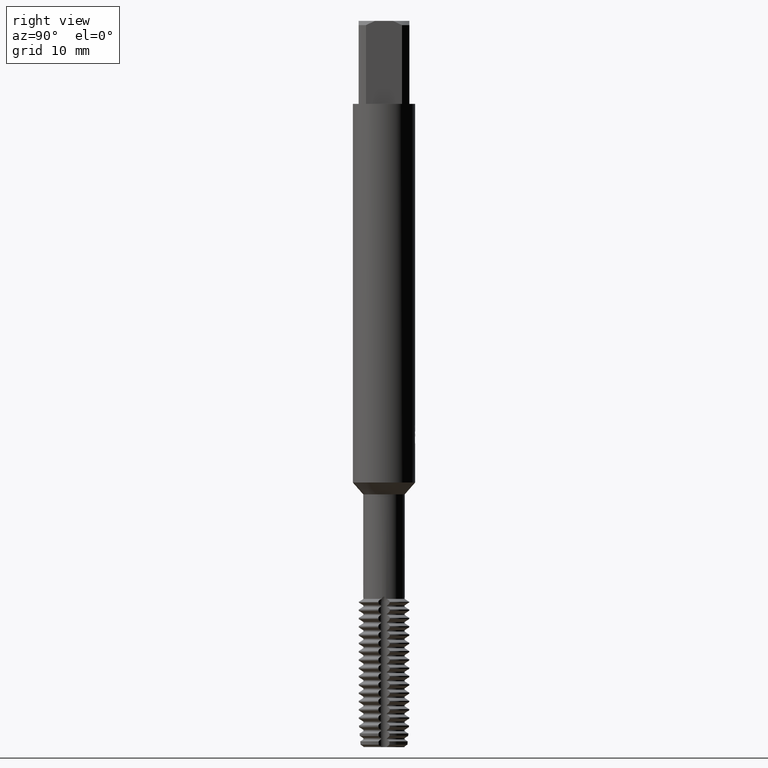
[diagram: clean part render]
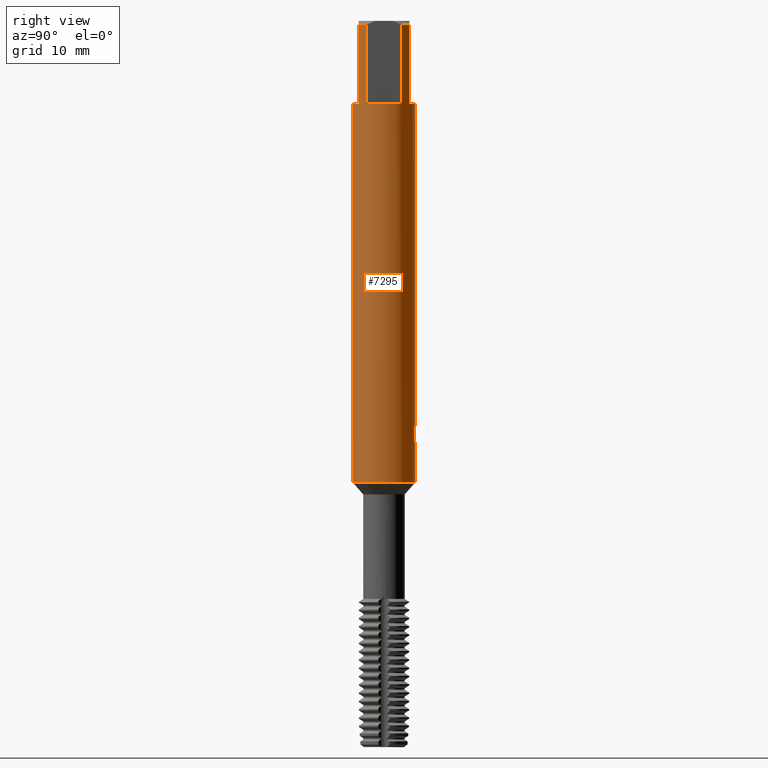
[diagram: same view with one face highlighted and labeled with its STEP entity id]
A machine part, right view. The second image highlights one B-rep face of the part: STEP entity #7295.
In plain terms, the highlighted cylindrical surface (edge-blend (fillet) strip) has radius 3 mm, axis along (-0, -0, 1).
Its self-contained STEP definition (entity closure, byte-faithful):
#2969=VERTEX_POINT('',#8853);
#3189=EDGE_CURVE('',#7609,#3845,#9094,.T.);
#3193=EDGE_CURVE('',#6067,#8169,#9099,.T.);
#3225=EDGE_CURVE('',#6953,#8217,#9135,.T.);
#3249=EDGE_CURVE('',#5449,#4491,#9161,.T.);
#3793=EDGE_CURVE('',#8405,#8109,#9755,.T.);
#3845=VERTEX_POINT('',#9812);
#4277=EDGE_CURVE('',#4585,#7231,#10288,.T.);
#4307=VERTEX_POINT('',#10321);
#4475=EDGE_CURVE('',#7081,#6067,#10503,.T.);
#4491=VERTEX_POINT('',#10520);
#4585=VERTEX_POINT('',#10623);
#4807=EDGE_CURVE('',#4307,#6493,#10869,.T.);
#4835=VERTEX_POINT('',#10900);
#4971=EDGE_CURVE('',#8217,#8565,#11042,.T.);
#5449=VERTEX_POINT('',#11559);
#5559=VERTEX_POINT('',#11680);
#5591=EDGE_CURVE('',#3845,#6953,#11714,.T.);
#5765=EDGE_CURVE('',#2969,#5449,#11899,.T.);
#5905=EDGE_CURVE('',#4835,#4307,#12055,.T.);
#6067=VERTEX_POINT('',#12232);
#6493=VERTEX_POINT('',#12699);
#6669=EDGE_CURVE('',#8565,#7231,#12890,.T.);
#6679=EDGE_CURVE('',#6493,#8671,#12902,.T.);
#6947=EDGE_CURVE('',#8169,#4835,#13190,.T.);
#6953=VERTEX_POINT('',#13196);
#7059=EDGE_CURVE('',#8671,#8109,#13309,.T.);
#7081=VERTEX_POINT('',#13331);
#7147=EDGE_CURVE('',#8405,#2969,#13403,.T.);
#7231=VERTEX_POINT('',#13496);
#7295=ADVANCED_FACE('',(#13563),#13564,.T.);
#7609=VERTEX_POINT('',#13899);
#8015=EDGE_CURVE('',#5559,#4585,#14334,.T.);
#8091=EDGE_CURVE('',#7081,#5559,#14415,.T.);
#8109=VERTEX_POINT('',#14434);
#8169=VERTEX_POINT('',#14498);
#8217=VERTEX_POINT('',#14551);
#8405=VERTEX_POINT('',#14759);
#8565=VERTEX_POINT('',#14930);
#8671=VERTEX_POINT('',#15039);
#8769=EDGE_CURVE('',#4491,#7609,#15144,.T.);
#8853=CARTESIAN_POINT('',(1.73132896931808,2.45,-8.0));
#9094=CIRCLE('',#15663,3.0);
#9099=ELLIPSE('',#15669,9.14398372010932,3.0);
#9135=CIRCLE('',#15737,3.0);
#9161=CIRCLE('',#15779,3.0);
#9755=LINE('',#16908,#16909);
#9812=CARTESIAN_POINT('',(2.45,-1.73132896931808,-8.0));
#10288=LINE('',#17923,#17924);
#10321=CARTESIAN_POINT('',(0.802326039087947,2.89072186953388,-40.3115994201954));
#10503=B_SPLINE_CURVE_WITH_KNOTS('',3,(#18349,#18350,#18351,#18352,#18353,#18354,#18355,#18356,#18357,#18358),.UNSPECIFIED.,.F.,.F.,(4,2,2,2,4),(3.33952438176389,3.71068639626914,4.08193290438485,4.45317941250055,4.82387408804259),.UNSPECIFIED.);
#10520=CARTESIAN_POINT('',(2.45,1.73132896931808,-0.399999999999999));
#10623=CARTESIAN_POINT('',(3.67381906146713E-016,-3.0,-44.5));
#10869=LINE('',#18993,#18994);
#10900=CARTESIAN_POINT('',(0.524136469055373,2.95385865636902,-40.5927411074919));
#11042=LINE('',#19330,#19331);
#11559=CARTESIAN_POINT('',(1.73132896931808,2.45,-0.399999999999999));
#11680=CARTESIAN_POINT('',(0.0,3.0,-44.5));
#11714=LINE('',#20613,#20614);
#11899=LINE('',#20972,#20973);
#12055=B_SPLINE_CURVE_WITH_KNOTS('',3,(#21245,#21246,#21247,#21248,#21249,#21250),.UNSPECIFIED.,.F.,.F.,(4,2,4),(4.82387363034724,5.19456827247255,5.56564622611886),.UNSPECIFIED.);
#12232=CARTESIAN_POINT('',(0.174061876221498,2.99494615364722,-40.7373997394137));
#12699=CARTESIAN_POINT('',(0.802326039087946,2.89072186953388,-39.2465290618892));
#12890=CIRCLE('',#22838,3.0);
#12902=B_SPLINE_CURVE_WITH_KNOTS('',3,(#22852,#22853,#22854,#22855,#22856,#22857),.UNSPECIFIED.,.F.,.F.,(4,2,4),(0.37107796654128,0.74215593308256,1.11285058772105),.UNSPECIFIED.);
#13190=LINE('',#23323,#23324);
#13196=CARTESIAN_POINT('',(2.45,-1.73132896931808,-0.399999999999999));
#13309=B_SPLINE_CURVE_WITH_KNOTS('',3,(#23555,#23556,#23557,#23558,#23559,#23560,#23561,#23562,#23563,#23564,#23565,#23566,#23567,#23568,#23569,#23570,#23571,#23572,#23573,#23574,#23575,#23576,#23577,#23578,#23579,#23580,#23581),.UNSPECIFIED.,.F.,.F.,(4,2,3,2,2,2,2,2,2,2,2,2,4),(-0.325491662881047,-0.162745831440524,0.0,0.162745831440523,0.325491662881047,0.48857928896217,0.651666915043293,0.814181075788761,0.97669523653423,1.13937860219068,1.30206196784712,1.46474533350356,1.62742869916001),.UNSPECIFIED.);
#13331=CARTESIAN_POINT('',(1.02911540261998E-015,2.99999999999999,-40.756115216062));
#13403=CIRCLE('',#23766,3.0);
#13496=CARTESIAN_POINT('',(3.67381906146713E-016,-3.0,-8.0));
#13563=FACE_OUTER_BOUND('',#24081,.T.);
#13564=CYLINDRICAL_SURFACE('',#24082,3.0);
#13899=CARTESIAN_POINT('',(2.45,1.73132896931808,-8.0));
#14334=CIRCLE('',#25518,3.0);
#14415=LINE('',#25659,#25660);
#14434=CARTESIAN_POINT('',(-1.12524208075106E-014,3.0,-39.5514612870646));
#14498=CARTESIAN_POINT('',(0.524136469055374,2.95385865636902,-39.7294358957655));
#14551=CARTESIAN_POINT('',(1.73132896931808,-2.45,-0.399999999999999));
#14759=CARTESIAN_POINT('',(-3.67381906146713E-016,3.0,-8.0));
#14930=CARTESIAN_POINT('',(1.73132896931808,-2.45,-8.0));
#15039=CARTESIAN_POINT('',(0.479659035830618,2.96140628913799,-38.9375001661238));
#15144=LINE('',#27135,#27136);
#15663=AXIS2_PLACEMENT_3D('',#27550,#27551,#27552);
#15669=AXIS2_PLACEMENT_3D('',#27561,#27562,#27563);
#15737=AXIS2_PLACEMENT_3D('',#27603,#27604,#27605);
#15779=AXIS2_PLACEMENT_3D('',#27630,#27631,#27632);
#16908=CARTESIAN_POINT('',(-3.67381906146713E-016,3.0,-22.45));
#16909=VECTOR('',#28232,1.0);
#17923=CARTESIAN_POINT('',(3.67381906146713E-016,-3.0,-22.45));
#17924=VECTOR('',#28917,1.0);
#18349=CARTESIAN_POINT('',(-0.919321134391312,2.85566956279284,-40.1542514643836));
#18350=CARTESIAN_POINT('',(-0.869340333826626,2.87175979045446,-40.2744526818478));
#18351=CARTESIAN_POINT('',(-0.7943367658771,2.89428729416518,-40.383680348735));
#18352=CARTESIAN_POINT('',(-0.62190649826245,2.93617195165647,-40.5561756687858));
#18353=CARTESIAN_POINT('',(-0.512637169305662,2.95836427575571,-40.6312653794614));
#18354=CARTESIAN_POINT('',(-0.272101743389447,2.99009643596645,-40.7313340938058));
#18355=CARTESIAN_POINT('',(-0.140764146727553,2.99924977776393,-40.7562634001052));
#18356=CARTESIAN_POINT('',(0.106545602280532,3.0006526485303,-40.7562634001052));
#18357=CARTESIAN_POINT('',(0.237797441372153,2.9930118737714,-40.7314004779081));
#18358=CARTESIAN_POINT('',(0.358042092904169,2.97855768111158,-40.6814214764374));
#18993=CARTESIAN_POINT('',(0.802326039087947,2.89072186953388,-39.7790642410423));
#18994=VECTOR('',#29519,1.0);
#19330=CARTESIAN_POINT('',(1.73132896931808,-2.45,-4.2));
#19331=VECTOR('',#29652,1.0);
#20613=CARTESIAN_POINT('',(2.45,-1.73132896931808,-4.2));
#20614=VECTOR('',#30456,1.0);
#20972=CARTESIAN_POINT('',(1.73132896931808,2.45,-4.2));
#20973=VECTOR('',#30628,1.0);
#21245=CARTESIAN_POINT('',(0.358041928866452,2.97855770082998,-40.6814212158429));
#21246=CARTESIAN_POINT('',(0.478286570305828,2.96410351610127,-40.6314422187729));
#21247=CARTESIAN_POINT('',(0.587589844864579,2.94322487202299,-40.5563934055854));
#21248=CARTESIAN_POINT('',(0.760180788580036,2.9034420697483,-40.383865199533));
#21249=CARTESIAN_POINT('',(0.835257361192048,2.88185438212673,-40.2745515395987));
#21250=CARTESIAN_POINT('',(0.885267801957576,2.86640906341318,-40.1542957897556));
#22838=AXIS2_PLACEMENT_3D('',#31786,#31787,#31788);
#22852=CARTESIAN_POINT('',(0.885267806757017,2.86640906193091,-39.4038327006887));
#22853=CARTESIAN_POINT('',(0.835257364243698,2.88185438127597,-39.2835769466886));
#22854=CARTESIAN_POINT('',(0.760180789012212,2.90344206972957,-39.1742632829805));
#22855=CARTESIAN_POINT('',(0.587589839319659,2.9432248732203,-39.0017350710499));
#22856=CARTESIAN_POINT('',(0.478286561023013,2.96410351776529,-38.9266862553258));
#22857=CARTESIAN_POINT('',(0.358041915481556,2.97855770243893,-38.8767072565724));
#23323=CARTESIAN_POINT('',(0.524136469055374,2.95385865636902,-40.1610885016287));
#23324=VECTOR('',#32072,1.0);
#23555=CARTESIAN_POINT('',(0.399073662054696,2.9733382270193,-38.8256578074487));
#23556=CARTESIAN_POINT('',(0.437241118172757,2.96821549111729,-38.8638666363942));
#23557=CARTESIAN_POINT('',(0.470378499662075,2.96297848846858,-38.9122661621587));
#23558=CARTESIAN_POINT('',(0.514381160077739,2.95565719997762,-39.0184468503984));
#23559=CARTESIAN_POINT('',(0.525240588713139,2.95366252709552,-39.0762365970719));
#23560=CARTESIAN_POINT('',(0.525240588713139,2.95366252709552,-39.1304852075521));
#23561=CARTESIAN_POINT('',(0.525240588713139,2.95366252709552,-39.1847338180322));
#23562=CARTESIAN_POINT('',(0.514381160077739,2.95565719997762,-39.2425235647058));
#23563=CARTESIAN_POINT('',(0.470378499662075,2.96297848846858,-39.3487042529454));
#23564=CARTESIAN_POINT('',(0.437241118172758,2.96821549111729,-39.39710377871));
#23565=CARTESIAN_POINT('',(0.360826047619651,2.97847172156046,-39.4736016818081));
#23566=CARTESIAN_POINT('',(0.312384718269332,2.98416839722865,-39.5068131706837));
#23567=CARTESIAN_POINT('',(0.206102293488516,2.99338722515065,-39.5509202069633));
#23568=CARTESIAN_POINT('',(0.148251731896476,2.99682777449178,-39.5618099616648));
#23569=CARTESIAN_POINT('',(0.0397709987252813,3.00022545933147,-39.5618099616648));
#23570=CARTESIAN_POINT('',(-0.0179912012444218,3.00041652694693,-39.5509886213906));
#23571=CARTESIAN_POINT('',(-0.124225517538505,2.99789776999505,-39.5069963705132));
#23572=CARTESIAN_POINT('',(-0.172700489972417,2.99527068292401,-39.4738276588386));
#23573=CARTESIAN_POINT('',(-0.249281669772502,2.9898718432363,-39.3972995158294));
#23574=CARTESIAN_POINT('',(-0.282493736677514,2.98675204362553,-39.3488123678398));
#23575=CARTESIAN_POINT('',(-0.326558647658045,2.98225584656319,-39.2425214521099));
#23576=CARTESIAN_POINT('',(-0.337408919512348,2.9809654847102,-39.1847129961042));
#23577=CARTESIAN_POINT('',(-0.337408919512347,2.9809654847102,-39.0762574189999));
#23578=CARTESIAN_POINT('',(-0.326558647658045,2.98225584656319,-39.0184489629942));
#23579=CARTESIAN_POINT('',(-0.282493736677516,2.98675204362553,-38.9121580472644));
#23580=CARTESIAN_POINT('',(-0.2492816697725,2.9898718432363,-38.8636708992748));
#23581=CARTESIAN_POINT('',(-0.210971156732432,2.9925726676268,-38.825386918428));
#23766=AXIS2_PLACEMENT_3D('',#32264,#32265,#32266);
#24081=EDGE_LOOP('',(#32420,#32421,#32422,#32423,#32424,#32425,#32426,#32427,#32428,#32429,#32430,#32431,#32432,#32433,#32434,#32435,#32436,#32437,#32438,#32439));
#24082=AXIS2_PLACEMENT_3D('',#32440,#32441,#32442);
#25518=AXIS2_PLACEMENT_3D('',#33247,#33248,#33249);
#25659=CARTESIAN_POINT('',(-3.67381906146713E-016,3.0,-22.45));
#25660=VECTOR('',#33317,1.0);
#27135=CARTESIAN_POINT('',(2.45,1.73132896931808,-4.2));
#27136=VECTOR('',#33964,1.0);
#27550=CARTESIAN_POINT('',(0.0,0.0,-8.0));
#27551=DIRECTION('',(0.0,0.0,-1.0));
#27552=DIRECTION('',(0.0,1.0,0.0));
#27561=CARTESIAN_POINT('',(0.0,0.0,-41.2385731503961));
#27562=DIRECTION('',(0.944648353914092,0.0,-0.328084573619969));
#27563=DIRECTION('',(0.328084573619969,-0.0,0.944648353914092));
#27603=CARTESIAN_POINT('',(0.0,0.0,-0.399999999999999));
#27604=DIRECTION('',(0.0,0.0,-1.0));
#27605=DIRECTION('',(0.0,1.0,0.0));
#27630=CARTESIAN_POINT('',(0.0,0.0,-0.399999999999999));
#27631=DIRECTION('',(0.0,0.0,-1.0));
#27632=DIRECTION('',(0.0,1.0,0.0));
#28232=DIRECTION('',(0.0,0.0,-1.0));
#28917=DIRECTION('',(-0.0,-0.0,1.0));
#29519=DIRECTION('',(-0.0,-0.0,1.0));
#29652=DIRECTION('',(0.0,0.0,-1.0));
#30456=DIRECTION('',(-0.0,-0.0,1.0));
#30628=DIRECTION('',(-0.0,-0.0,1.0));
#31786=CARTESIAN_POINT('',(0.0,0.0,-8.0));
#31787=DIRECTION('',(0.0,0.0,-1.0));
#31788=DIRECTION('',(0.0,1.0,0.0));
#32072=DIRECTION('',(0.0,0.0,-1.0));
#32264=CARTESIAN_POINT('',(0.0,0.0,-8.0));
#32265=DIRECTION('',(0.0,0.0,-1.0));
#32266=DIRECTION('',(0.0,1.0,0.0));
#32420=ORIENTED_EDGE('',*,*,#3793,.F.);
#32421=ORIENTED_EDGE('',*,*,#7147,.T.);
#32422=ORIENTED_EDGE('',*,*,#5765,.T.);
#32423=ORIENTED_EDGE('',*,*,#3249,.T.);
#32424=ORIENTED_EDGE('',*,*,#8769,.T.);
#32425=ORIENTED_EDGE('',*,*,#3189,.T.);
#32426=ORIENTED_EDGE('',*,*,#5591,.T.);
#32427=ORIENTED_EDGE('',*,*,#3225,.T.);
#32428=ORIENTED_EDGE('',*,*,#4971,.T.);
#32429=ORIENTED_EDGE('',*,*,#6669,.T.);
#32430=ORIENTED_EDGE('',*,*,#4277,.F.);
#32431=ORIENTED_EDGE('',*,*,#8015,.F.);
#32432=ORIENTED_EDGE('',*,*,#8091,.F.);
#32433=ORIENTED_EDGE('',*,*,#4475,.T.);
#32434=ORIENTED_EDGE('',*,*,#3193,.T.);
#32435=ORIENTED_EDGE('',*,*,#6947,.T.);
#32436=ORIENTED_EDGE('',*,*,#5905,.T.);
#32437=ORIENTED_EDGE('',*,*,#4807,.T.);
#32438=ORIENTED_EDGE('',*,*,#6679,.T.);
#32439=ORIENTED_EDGE('',*,*,#7059,.T.);
#32440=CARTESIAN_POINT('',(0.0,0.0,-22.45));
#32441=DIRECTION('',(-0.0,-0.0,1.0));
#32442=DIRECTION('',(0.0,1.0,0.0));
#33247=CARTESIAN_POINT('',(0.0,0.0,-44.5));
#33248=DIRECTION('',(0.0,0.0,-1.0));
#33249=DIRECTION('',(0.0,1.0,0.0));
#33317=DIRECTION('',(0.0,0.0,-1.0));
#33964=DIRECTION('',(0.0,0.0,-1.0));